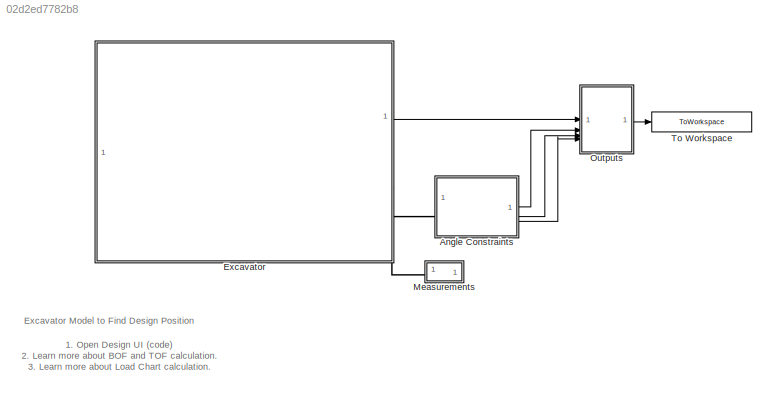
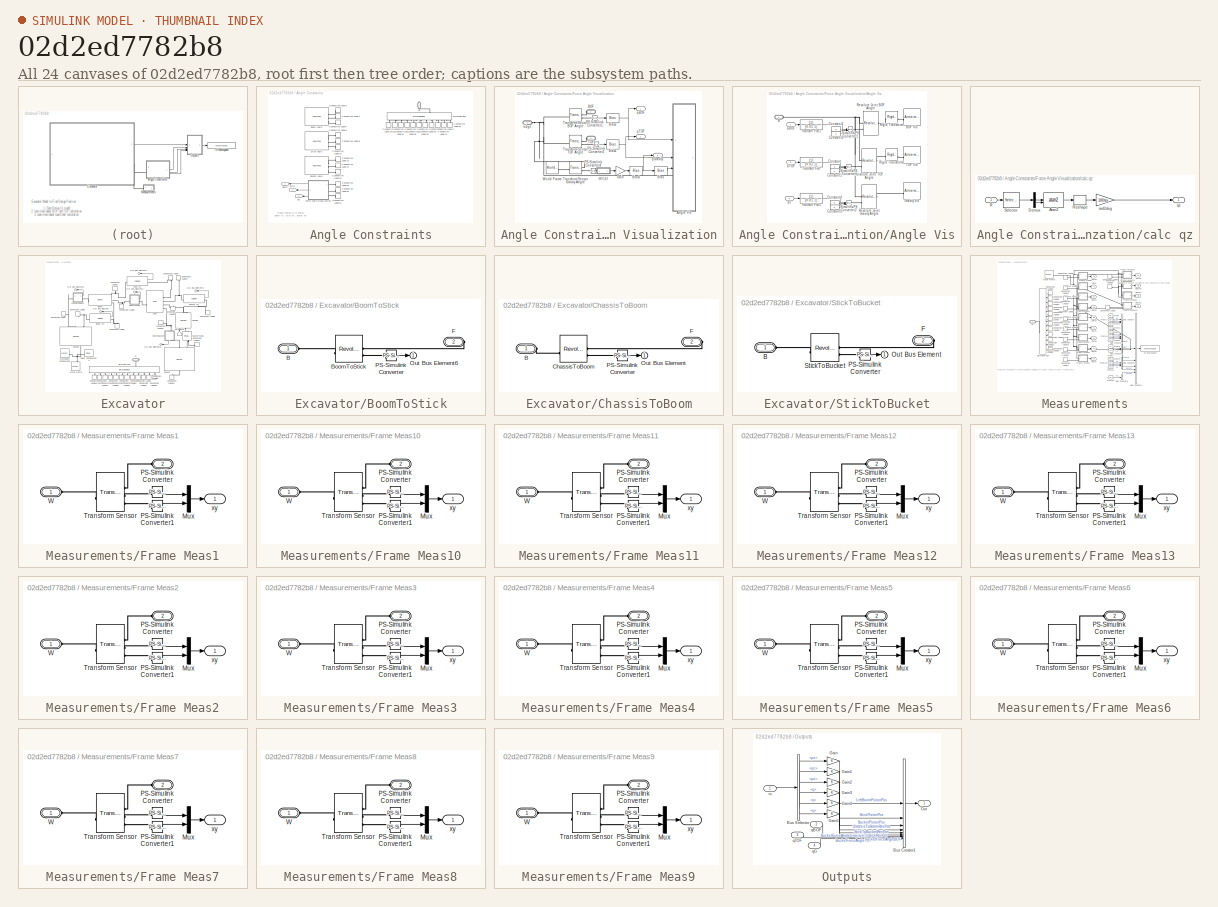
[diagram: thumbnail index - all 24 canvases of the model, root first then tree order]
MODEL slx_02d2ed7782b8
KIND model
CONFIG AbsTol = 1e-3
CONFIG EnableMultiTasking = on
CONFIG InitFcn = if(~exist('ExcvLocal'))\nExcvGlobal = Excavator_Pin_Locations_global('Design A');\nExcvLocal  = Excavator_Pin_Locations_global2local(ExcvGlobal);\ndisp('Loading default pin locations...');\nend
CONFIG SolverName = ode45
CONFIG StopTime = 0.2
BLOCK [SubSystem] Angle Constraints
BLOCK [Reference] Angle Constraints/Boom Angle  REF=Linkage_Assembly_Lib/AngleTool
  SourceBlock = Linkage_Assembly_Lib/AngleTool
  SourceType = Set Angle Between Three Frames
BLOCK [Reference] Angle Constraints/Bucket Angle  REF=Linkage_Assembly_Lib/AngleTool
  SourceBlock = Linkage_Assembly_Lib/AngleTool
  SourceType = Set Angle Between Three Frames
BLOCK [ConnectionLabel] Angle Constraints/Connection Label1
  Label = A1
BLOCK [ConnectionLabel] Angle Constraints/Connection Label10
  Label = B2
BLOCK [ConnectionLabel] Angle Constraints/Connection Label12
  Label = D1
BLOCK [ConnectionLabel] Angle Constraints/Connection Label14
  Label = C4
BLOCK [ConnectionLabel] Angle Constraints/Connection Label16
  Label = C2
BLOCK [ConnectionLabel] Angle Constraints/Connection Label18
  Label = A1
  NameLocation = right
BLOCK [ConnectionLabel] Angle Constraints/Connection Label19
  Label = A2
  NameLocation = right
BLOCK [ConnectionLabel] Angle Constraints/Connection Label2
  Label = A2
BLOCK [ConnectionLabel] Angle Constraints/Connection Label20
  Label = C4
BLOCK [ConnectionLabel] Angle Constraints/Connection Label21
  Label = B3
BLOCK [ConnectionLabel] Angle Constraints/Connection Label22
  Label = D2
BLOCK [ConnectionLabel] Angle Constraints/Connection Label24
  Label = B1
  NameLocation = right
BLOCK [ConnectionLabel] Angle Constraints/Connection Label25
  Label = B2
  NameLocation = left
BLOCK [ConnectionLabel] Angle Constraints/Connection Label26
  Label = B3
  NameLocation = left
BLOCK [ConnectionLabel] Angle Constraints/Connection Label27
  Label = C1
  NameLocation = left
BLOCK [ConnectionLabel] Angle Constraints/Connection Label28
  Label = C2
  NameLocation = left
BLOCK [ConnectionLabel] Angle Constraints/Connection Label3
  Label = C4
  NameLocation = left
BLOCK [ConnectionLabel] Angle Constraints/Connection Label30
  Label = C3
  NameLocation = left
BLOCK [ConnectionLabel] Angle Constraints/Connection Label31
  Label = D1
  NameLocation = left
BLOCK [ConnectionLabel] Angle Constraints/Connection Label32
  Label = D2
  NameLocation = left
BLOCK [ConnectionLabel] Angle Constraints/Connection Label4
  Label = B1
BLOCK [ConnectionLabel] Angle Constraints/Connection Label6
  Label = C1
BLOCK [ConnectionLabel] Angle Constraints/Connection Label8
  Label = B3
BLOCK [SubSystem] Angle Constraints/Force Angle Visualization
BLOCK [SubSystem] Angle Constraints/Force Angle Visualization/Angle Vis
BLOCK [PMIOPort] Angle Constraints/Force Angle Visualization/Angle Vis/B
  Side = Left
BLOCK [Reference] Angle Constraints/Force Angle Visualization/Angle Vis/BOF Vis  REF=Arrowhead_Lib/Arrow with
Reference Line
  SourceBlock = Arrowhead_Lib/Arrow with\nReference Line
BLOCK [Constant] Angle Constraints/Force Angle Visualization/Angle Vis/Constant
  Value = 0
BLOCK [Constant] Angle Constraints/Force Angle Visualization/Angle Vis/Constant1
  Value = 0
BLOCK [Constant] Angle Constraints/Force Angle Visualization/Angle Vis/Constant2
  Value = 0
BLOCK [Constant] Angle Constraints/Force Angle Visualization/Angle Vis/Constant3
  Value = 0
BLOCK [Constant] Angle Constraints/Force Angle Visualization/Angle Vis/Constant4
  Value = 0
BLOCK [Constant] Angle Constraints/Force Angle Visualization/Angle Vis/Constant5
  Value = 0
BLOCK [Reference] Angle Constraints/Force Angle Visualization/Angle Vis/Gravity Vis  REF=Arrowhead_Lib/Arrow with
Reference Line
  SourceBlock = Arrowhead_Lib/Arrow with\nReference Line
BLOCK [Reference] Angle Constraints/Force Angle Visualization/Angle Vis/Revolute Joint BOF Angle  REF=sm_lib/Joints/Revolute Joint
  SourceBlock = sm_lib/Joints/Revolute Joint
  SourceType = Revolute Joint
BLOCK [Reference] Angle Constraints/Force Angle Visualization/Angle Vis/Revolute Joint Gravity Angle  REF=sm_lib/Joints/Revolute Joint
  SourceBlock = sm_lib/Joints/Revolute Joint
  SourceType = Revolute Joint
BLOCK [Reference] Angle Constraints/Force Angle Visualization/Angle Vis/Revolute Joint TOF Angle  REF=sm_lib/Joints/Revolute Joint
  SourceBlock = sm_lib/Joints/Revolute Joint
  SourceType = Revolute Joint
BLOCK [Reference] Angle Constraints/Force Angle Visualization/Angle Vis/Rigid Transform  REF=sm_lib/Frames and
Transforms/Rigid
Transform
  SourceBlock = sm_lib/Frames and\nTransforms/Rigid\nTransform
  SourceType = Rigid\nTransform
BLOCK [Reference] Angle Constraints/Force Angle Visualization/Angle Vis/Rigid Transform1  REF=sm_lib/Frames and
Transforms/Rigid
Transform
  SourceBlock = sm_lib/Frames and\nTransforms/Rigid\nTransform
  SourceType = Rigid\nTransform
BLOCK [Reference] Angle Constraints/Force Angle Visualization/Angle Vis/Simulink-PS Converter  REF=nesl_utility/Simulink-PS
Converter
  SourceBlock = nesl_utility/Simulink-PS\nConverter
  SourceType = Simulink-PS\nConverter
BLOCK [Reference] Angle Constraints/Force Angle Visualization/Angle Vis/Simulink-PS Converter1  REF=nesl_utility/Simulink-PS
Converter
  SourceBlock = nesl_utility/Simulink-PS\nConverter
  SourceType = Simulink-PS\nConverter
BLOCK [Reference] Angle Constraints/Force Angle Visualization/Angle Vis/Simulink-PS Converter2  REF=nesl_utility/Simulink-PS
Converter
  SourceBlock = nesl_utility/Simulink-PS\nConverter
  SourceType = Simulink-PS\nConverter
BLOCK [Reference] Angle Constraints/Force Angle Visualization/Angle Vis/TOF Vis  REF=Arrowhead_Lib/Arrow with
Reference Line
  SourceBlock = Arrowhead_Lib/Arrow with\nReference Line
BLOCK [TransferFcn] Angle Constraints/Force Angle Visualization/Angle Vis/Transfer Fcn
  Denominator = [0.01 1]
BLOCK [TransferFcn] Angle Constraints/Force Angle Visualization/Angle Vis/Transfer Fcn1
  Denominator = [0.01 1]
BLOCK [TransferFcn] Angle Constraints/Force Angle Visualization/Angle Vis/Transfer Fcn2
  Denominator = [0.01 1]
BLOCK [Inport] Angle Constraints/Force Angle Visualization/Angle Vis/aBOF
BLOCK [Inport] Angle Constraints/Force Angle Visualization/Angle Vis/aTOF
  Port = 2
BLOCK [Inport] Angle Constraints/Force Angle Visualization/Angle Vis/qz
  Port = 3
BLOCK [PMIOPort] Angle Constraints/Force Angle Visualization/BOF
  NameLocation = top
  Port = 2
  Side = Left
BLOCK [Bias] Angle Constraints/Force Angle Visualization/Bias
  Bias = 180
  SaturateOnIntegerOverflow = off
BLOCK [Bias] Angle Constraints/Force Angle Visualization/Bias1
  Bias = -90
  SaturateOnIntegerOverflow = off
BLOCK [Bias] Angle Constraints/Force Angle Visualization/Bias2
  Bias = -90
  SaturateOnIntegerOverflow = off
BLOCK [Bias] Angle Constraints/Force Angle Visualization/Bias3
  Bias = -90
  SaturateOnIntegerOverflow = off
BLOCK [PMIOPort] Angle Constraints/Force Angle Visualization/Edge
  Side = Left
BLOCK [Gain] Angle Constraints/Force Angle Visualization/Gain
  Gain = -1
BLOCK [Reference] Angle Constraints/Force Angle Visualization/PS-Simulink Converter1  REF=nesl_utility/PS-Simulink
Converter
  SourceBlock = nesl_utility/PS-Simulink\nConverter
  SourceType = PS-Simulink\nConverter
BLOCK [Reference] Angle Constraints/Force Angle Visualization/PS-Simulink Converter2  REF=nesl_utility/PS-Simulink
Converter
  SourceBlock = nesl_utility/PS-Simulink\nConverter
  SourceType = PS-Simulink\nConverter
BLOCK [Reference] Angle Constraints/Force Angle Visualization/PS-Simulink Converter4  REF=nesl_utility/PS-Simulink
Converter
  SourceBlock = nesl_utility/PS-Simulink\nConverter
  SourceType = PS-Simulink\nConverter
BLOCK [PMIOPort] Angle Constraints/Force Angle Visualization/TOF
  NameLocation = top
  Port = 3
  Side = Left
BLOCK [Reference] Angle Constraints/Force Angle Visualization/Transform Sensor BOF Angle  REF=sm_lib/Frames and
Transforms/Transform
Sensor
  SourceBlock = sm_lib/Frames and\nTransforms/Transform\nSensor
  SourceType = Transform\nSensor
BLOCK [Reference] Angle Constraints/Force Angle Visualization/Transform Sensor Gravity Angle  REF=sm_lib/Frames and
Transforms/Transform
Sensor
  SourceBlock = sm_lib/Frames and\nTransforms/Transform\nSensor
  SourceType = Transform\nSensor
BLOCK [Reference] Angle Constraints/Force Angle Visualization/Transform Sensor TOF Angle  REF=sm_lib/Frames and
Transforms/Transform
Sensor
  SourceBlock = sm_lib/Frames and\nTransforms/Transform\nSensor
  SourceType = Transform\nSensor
BLOCK [Reference] Angle Constraints/Force Angle Visualization/World Frame  REF=sm_lib/Frames and
Transforms/World Frame
  SourceBlock = sm_lib/Frames and\nTransforms/World Frame
  SourceType = World Frame
BLOCK [SubSystem] Angle Constraints/Force Angle Visualization/calc qz
BLOCK [Trigonometry] Angle Constraints/Force Angle Visualization/calc qz/Atan2
  Operator = atan2
BLOCK [Demux] Angle Constraints/Force Angle Visualization/calc qz/Demux
  Outputs = 2
BLOCK [Inport] Angle Constraints/Force Angle Visualization/calc qz/R
BLOCK [Reshape] Angle Constraints/Force Angle Visualization/calc qz/Reshape
BLOCK [Selector] Angle Constraints/Force Angle Visualization/calc qz/Selector
  IndexOptions = Index vector (dialog),Index vector (dialog)
  Indices = [2 1],1
  InputPortWidth = 3
  NumberOfDimensions = 2
  OutputSizes = 1,1
BLOCK [Outport] Angle Constraints/Force Angle Visualization/calc qz/qz
BLOCK [Gain] Angle Constraints/Force Angle Visualization/calc qz/rad2deg
  Gain = 180/pi
BLOCK [Outport] Angle Constraints/Force Angle Visualization/qBOF
BLOCK [Outport] Angle Constraints/Force Angle Visualization/qGravity
  Port = 3
BLOCK [Outport] Angle Constraints/Force Angle Visualization/qTOF
  Port = 2
BLOCK [PMIOPort] Angle Constraints/Fr
  NameLocation = left
  Side = Left
BLOCK [SimscapeBus] Angle Constraints/Simscape Bus
  HierarchyStrings = A1;A2;B1;B2;B3;C1;C2;C3;C4;D1;D2
  NameLocation = left
BLOCK [Reference] Angle Constraints/Stick Angle  REF=Linkage_Assembly_Lib/AngleTool
  SourceBlock = Linkage_Assembly_Lib/AngleTool
  SourceType = Set Angle Between Three Frames
BLOCK [Outport] Angle Constraints/qBOF
BLOCK [Outport] Angle Constraints/qG
  Port = 3
BLOCK [Outport] Angle Constraints/qTOF
  Port = 2
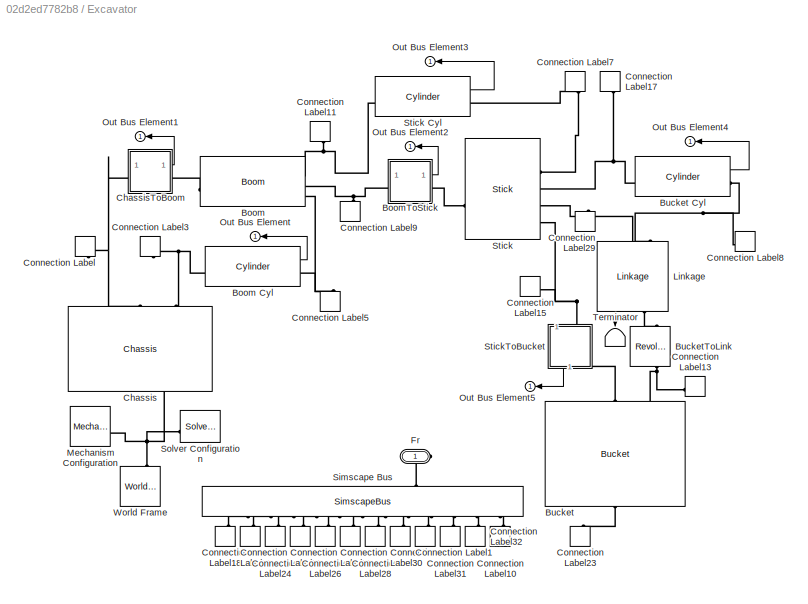
BLOCK [SubSystem] Excavator
BLOCK [Reference] Excavator/Boom  REF=Excavator_Parts_Param_Lib/Boom
  SourceBlock = Excavator_Parts_Param_Lib/Boom
BLOCK [Reference] Excavator/Boom Cyl  REF=Excavator_Parts_Param_Lib/Cylinder
  SourceBlock = Excavator_Parts_Param_Lib/Cylinder
BLOCK [SubSystem] Excavator/BoomToStick
BLOCK [PMIOPort] Excavator/BoomToStick/B
  Side = Left
BLOCK [Reference] Excavator/BoomToStick/BoomToStick  REF=sm_lib/Joints/Revolute Joint
  SourceBlock = sm_lib/Joints/Revolute Joint
  SourceType = Revolute Joint
BLOCK [PMIOPort] Excavator/BoomToStick/F
  Port = 2
  Side = Right
BLOCK [Outport] Excavator/BoomToStick/Out Bus Element6
BLOCK [Reference] Excavator/BoomToStick/PS-Simulink Converter  REF=nesl_utility/PS-Simulink
Converter
  SourceBlock = nesl_utility/PS-Simulink\nConverter
  SourceType = PS-Simulink\nConverter
BLOCK [Reference] Excavator/Bucket  REF=Excavator_Parts_Param_Lib/Bucket
  NameLocation = left
  SourceBlock = Excavator_Parts_Param_Lib/Bucket
BLOCK [Reference] Excavator/Bucket Cyl  REF=Excavator_Parts_Param_Lib/Cylinder
  SourceBlock = Excavator_Parts_Param_Lib/Cylinder
BLOCK [Reference] Excavator/BucketToLink  REF=sm_lib/Joints/Revolute Joint
  NameLocation = right
  SourceBlock = sm_lib/Joints/Revolute Joint
  SourceType = Revolute Joint
BLOCK [Reference] Excavator/Chassis  REF=Excavator_Parts_Param_Lib/Chassis
  NameLocation = right
  SourceBlock = Excavator_Parts_Param_Lib/Chassis
BLOCK [SubSystem] Excavator/ChassisToBoom
BLOCK [PMIOPort] Excavator/ChassisToBoom/B
  Side = Left
BLOCK [Reference] Excavator/ChassisToBoom/ChassisToBoom  REF=sm_lib/Joints/Revolute Joint
  SourceBlock = sm_lib/Joints/Revolute Joint
  SourceType = Revolute Joint
BLOCK [PMIOPort] Excavator/ChassisToBoom/F
  Port = 2
  Side = Right
BLOCK [Outport] Excavator/ChassisToBoom/Out Bus Element
BLOCK [Reference] Excavator/ChassisToBoom/PS-Simulink Converter  REF=nesl_utility/PS-Simulink
Converter
  SourceBlock = nesl_utility/PS-Simulink\nConverter
  SourceType = PS-Simulink\nConverter
BLOCK [ConnectionLabel] Excavator/Connection Label
  Label = A1
  NameLocation = left
BLOCK [ConnectionLabel] Excavator/Connection Label1
  Label = C4
  NameLocation = left
BLOCK [ConnectionLabel] Excavator/Connection Label10
  Label = E1
  NameLocation = right
BLOCK [ConnectionLabel] Excavator/Connection Label11
  Label = B2
  NameLocation = left
BLOCK [ConnectionLabel] Excavator/Connection Label13
  Label = D1
  NameLocation = top
BLOCK [ConnectionLabel] Excavator/Connection Label15
  Label = C4
BLOCK [ConnectionLabel] Excavator/Connection Label17
  Label = C2
  NameLocation = left
BLOCK [ConnectionLabel] Excavator/Connection Label18
  Label = A1
  NameLocation = right
BLOCK [ConnectionLabel] Excavator/Connection Label19
  Label = A2
  NameLocation = right
BLOCK [ConnectionLabel] Excavator/Connection Label23
  Label = D2
  NameLocation = right
BLOCK [ConnectionLabel] Excavator/Connection Label24
  Label = B1
  NameLocation = right
BLOCK [ConnectionLabel] Excavator/Connection Label25
  Label = B2
  NameLocation = left
BLOCK [ConnectionLabel] Excavator/Connection Label26
  Label = B3
  NameLocation = left
BLOCK [ConnectionLabel] Excavator/Connection Label27
  Label = C1
  NameLocation = left
BLOCK [ConnectionLabel] Excavator/Connection Label28
  Label = C2
  NameLocation = left
BLOCK [ConnectionLabel] Excavator/Connection Label29
  Label = C3
  NameLocation = right
BLOCK [ConnectionLabel] Excavator/Connection Label3
  Label = A2
  NameLocation = right
BLOCK [ConnectionLabel] Excavator/Connection Label30
  Label = C3
  NameLocation = left
BLOCK [ConnectionLabel] Excavator/Connection Label31
  Label = D1
  NameLocation = left
BLOCK [ConnectionLabel] Excavator/Connection Label32
  Label = D2
  NameLocation = left
BLOCK [ConnectionLabel] Excavator/Connection Label5
  Label = B1
  NameLocation = left
BLOCK [ConnectionLabel] Excavator/Connection Label7
  Label = C1
  NameLocation = left
BLOCK [ConnectionLabel] Excavator/Connection Label8
  Label = E1
  NameLocation = top
BLOCK [ConnectionLabel] Excavator/Connection Label9
  Label = B3
  NameLocation = right
BLOCK [PMIOPort] Excavator/Fr
  Side = Right
BLOCK [Reference] Excavator/Linkage  REF=Excavator_Parts_Param_Lib/Linkage
  NameLocation = right
  SourceBlock = Excavator_Parts_Param_Lib/Linkage
BLOCK [Reference] Excavator/Mechanism Configuration  REF=sm_lib/Utilities/Mechanism
Configuration
  SourceBlock = sm_lib/Utilities/Mechanism\nConfiguration
  SourceType = Mechanism\nConfiguration
BLOCK [Outport] Excavator/Out Bus Element
  NameLocation = top
BLOCK [Outport] Excavator/Out Bus Element1
  NameLocation = top
BLOCK [Outport] Excavator/Out Bus Element2
  NameLocation = top
BLOCK [Outport] Excavator/Out Bus Element3
  NameLocation = top
BLOCK [Outport] Excavator/Out Bus Element4
  NameLocation = top
BLOCK [Outport] Excavator/Out Bus Element5
  NameLocation = top
BLOCK [SimscapeBus] Excavator/Simscape Bus
  HierarchyStrings = A1;A2;B1;B2;B3;C1;C2;C3;C4;D1;D2;E1
  NameLocation = left
BLOCK [Reference] Excavator/Solver Configuration  REF=nesl_utility/Solver
Configuration
  SourceBlock = nesl_utility/Solver\nConfiguration
  SourceType = Solver\nConfiguration
BLOCK [Reference] Excavator/Stick  REF=Excavator_Parts_Param_Lib/Stick
  SourceBlock = Excavator_Parts_Param_Lib/Stick
BLOCK [Reference] Excavator/Stick Cyl  REF=Excavator_Parts_Param_Lib/Cylinder
  SourceBlock = Excavator_Parts_Param_Lib/Cylinder
BLOCK [SubSystem] Excavator/StickToBucket
  NameLocation = left
BLOCK [PMIOPort] Excavator/StickToBucket/B
  Side = Left
BLOCK [PMIOPort] Excavator/StickToBucket/F
  Port = 2
  Side = Right
BLOCK [Outport] Excavator/StickToBucket/Out Bus Element
BLOCK [Reference] Excavator/StickToBucket/PS-Simulink Converter  REF=nesl_utility/PS-Simulink
Converter
  SourceBlock = nesl_utility/PS-Simulink\nConverter
  SourceType = PS-Simulink\nConverter
BLOCK [Reference] Excavator/StickToBucket/StickToBucket  REF=sm_lib/Joints/Revolute Joint
  SourceBlock = sm_lib/Joints/Revolute Joint
  SourceType = Revolute Joint
BLOCK [Terminator] Excavator/Terminator
  NameLocation = left
BLOCK [Reference] Excavator/World Frame  REF=sm_lib/Frames and
Transforms/World Frame
  NameLocation = right
  SourceBlock = sm_lib/Frames and\nTransforms/World Frame
  SourceType = World Frame
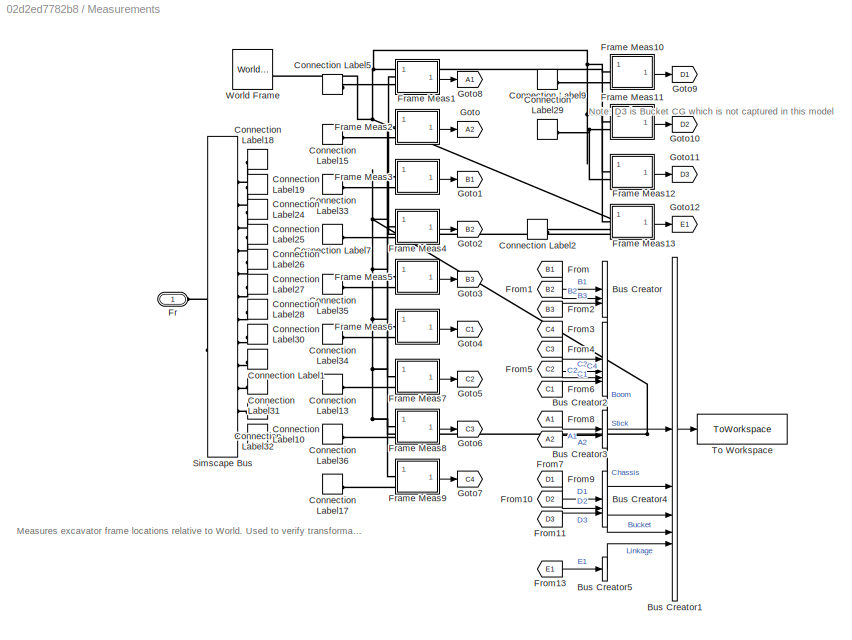
BLOCK [SubSystem] Measurements
BLOCK [BusCreator] Measurements/Bus Creator
  DisplayOption = bar
  InheritFromInputs = on
  Inputs = 3
BLOCK [BusCreator] Measurements/Bus Creator1
  DisplayOption = bar
  InheritFromInputs = on
  Inputs = 5
BLOCK [BusCreator] Measurements/Bus Creator2
  DisplayOption = bar
  InheritFromInputs = on
  Inputs = 4
BLOCK [BusCreator] Measurements/Bus Creator3
  DisplayOption = bar
  InheritFromInputs = on
  Inputs = 2
BLOCK [BusCreator] Measurements/Bus Creator4
  DisplayOption = bar
  InheritFromInputs = on
  Inputs = 3
BLOCK [BusCreator] Measurements/Bus Creator5
  DisplayOption = bar
  InheritFromInputs = on
  Inputs = 1
BLOCK [ConnectionLabel] Measurements/Connection Label1
  Label = C4
  NameLocation = top
BLOCK [ConnectionLabel] Measurements/Connection Label10
  Label = E1
BLOCK [ConnectionLabel] Measurements/Connection Label13
  Label = C2
BLOCK [ConnectionLabel] Measurements/Connection Label15
  Label = A2
BLOCK [ConnectionLabel] Measurements/Connection Label17
  Label = C4
BLOCK [ConnectionLabel] Measurements/Connection Label18
  Label = A1
BLOCK [ConnectionLabel] Measurements/Connection Label19
  Label = A2
BLOCK [ConnectionLabel] Measurements/Connection Label2
  Label = E1
BLOCK [ConnectionLabel] Measurements/Connection Label24
  Label = B1
BLOCK [ConnectionLabel] Measurements/Connection Label25
  Label = B2
  NameLocation = top
BLOCK [ConnectionLabel] Measurements/Connection Label26
  Label = B3
  NameLocation = top
BLOCK [ConnectionLabel] Measurements/Connection Label27
  Label = C1
  NameLocation = top
BLOCK [ConnectionLabel] Measurements/Connection Label28
  Label = C2
  NameLocation = top
BLOCK [ConnectionLabel] Measurements/Connection Label29
  Label = D2
BLOCK [ConnectionLabel] Measurements/Connection Label30
  Label = C3
  NameLocation = top
BLOCK [ConnectionLabel] Measurements/Connection Label31
  Label = D1
  NameLocation = top
BLOCK [ConnectionLabel] Measurements/Connection Label32
  Label = D2
  NameLocation = top
BLOCK [ConnectionLabel] Measurements/Connection Label33
  Label = B1
BLOCK [ConnectionLabel] Measurements/Connection Label34
  Label = C1
BLOCK [ConnectionLabel] Measurements/Connection Label35
  Label = B3
BLOCK [ConnectionLabel] Measurements/Connection Label36
  Label = C3
  NameLocation = top
BLOCK [ConnectionLabel] Measurements/Connection Label5
  Label = A1
BLOCK [ConnectionLabel] Measurements/Connection Label7
  Label = B2
BLOCK [ConnectionLabel] Measurements/Connection Label9
  Label = D1
BLOCK [PMIOPort] Measurements/Fr
  NameLocation = top
  Side = Left
BLOCK [SubSystem] Measurements/Frame Meas1
BLOCK [PMIOPort] Measurements/Frame Meas1/F
  Port = 2
  Side = Left
BLOCK [Mux] Measurements/Frame Meas1/Mux
  DisplayOption = bar
  Inputs = 2
BLOCK [Reference] Measurements/Frame Meas1/PS-Simulink Converter  REF=nesl_utility/PS-Simulink
Converter
  SourceBlock = nesl_utility/PS-Simulink\nConverter
  SourceType = PS-Simulink\nConverter
BLOCK [Reference] Measurements/Frame Meas1/PS-Simulink Converter1  REF=nesl_utility/PS-Simulink
Converter
  SourceBlock = nesl_utility/PS-Simulink\nConverter
  SourceType = PS-Simulink\nConverter
BLOCK [Reference] Measurements/Frame Meas1/Transform Sensor  REF=sm_lib/Frames and
Transforms/Transform
Sensor
  SourceBlock = sm_lib/Frames and\nTransforms/Transform\nSensor
  SourceType = Transform\nSensor
BLOCK [PMIOPort] Measurements/Frame Meas1/W
  Side = Left
BLOCK [Outport] Measurements/Frame Meas1/xy
BLOCK [SubSystem] Measurements/Frame Meas10
BLOCK [PMIOPort] Measurements/Frame Meas10/F
  Port = 2
  Side = Left
BLOCK [Mux] Measurements/Frame Meas10/Mux
  DisplayOption = bar
  Inputs = 2
BLOCK [Reference] Measurements/Frame Meas10/PS-Simulink Converter  REF=nesl_utility/PS-Simulink
Converter
  SourceBlock = nesl_utility/PS-Simulink\nConverter
  SourceType = PS-Simulink\nConverter
BLOCK [Reference] Measurements/Frame Meas10/PS-Simulink Converter1  REF=nesl_utility/PS-Simulink
Converter
  SourceBlock = nesl_utility/PS-Simulink\nConverter
  SourceType = PS-Simulink\nConverter
BLOCK [Reference] Measurements/Frame Meas10/Transform Sensor  REF=sm_lib/Frames and
Transforms/Transform
Sensor
  SourceBlock = sm_lib/Frames and\nTransforms/Transform\nSensor
  SourceType = Transform\nSensor
BLOCK [PMIOPort] Measurements/Frame Meas10/W
  Side = Left
BLOCK [Outport] Measurements/Frame Meas10/xy
BLOCK [SubSystem] Measurements/Frame Meas11
BLOCK [PMIOPort] Measurements/Frame Meas11/F
  Port = 2
  Side = Left
BLOCK [Mux] Measurements/Frame Meas11/Mux
  DisplayOption = bar
  Inputs = 2
BLOCK [Reference] Measurements/Frame Meas11/PS-Simulink Converter  REF=nesl_utility/PS-Simulink
Converter
  SourceBlock = nesl_utility/PS-Simulink\nConverter
  SourceType = PS-Simulink\nConverter
BLOCK [Reference] Measurements/Frame Meas11/PS-Simulink Converter1  REF=nesl_utility/PS-Simulink
Converter
  SourceBlock = nesl_utility/PS-Simulink\nConverter
  SourceType = PS-Simulink\nConverter
BLOCK [Reference] Measurements/Frame Meas11/Transform Sensor  REF=sm_lib/Frames and
Transforms/Transform
Sensor
  SourceBlock = sm_lib/Frames and\nTransforms/Transform\nSensor
  SourceType = Transform\nSensor
BLOCK [PMIOPort] Measurements/Frame Meas11/W
  Side = Left
BLOCK [Outport] Measurements/Frame Meas11/xy
BLOCK [SubSystem] Measurements/Frame Meas12
BLOCK [PMIOPort] Measurements/Frame Meas12/F
  Port = 2
  Side = Left
BLOCK [Mux] Measurements/Frame Meas12/Mux
  DisplayOption = bar
  Inputs = 2
BLOCK [Reference] Measurements/Frame Meas12/PS-Simulink Converter  REF=nesl_utility/PS-Simulink
Converter
  SourceBlock = nesl_utility/PS-Simulink\nConverter
  SourceType = PS-Simulink\nConverter
BLOCK [Reference] Measurements/Frame Meas12/PS-Simulink Converter1  REF=nesl_utility/PS-Simulink
Converter
  SourceBlock = nesl_utility/PS-Simulink\nConverter
  SourceType = PS-Simulink\nConverter
BLOCK [Reference] Measurements/Frame Meas12/Transform Sensor  REF=sm_lib/Frames and
Transforms/Transform
Sensor
  SourceBlock = sm_lib/Frames and\nTransforms/Transform\nSensor
  SourceType = Transform\nSensor
BLOCK [PMIOPort] Measurements/Frame Meas12/W
  Side = Left
BLOCK [Outport] Measurements/Frame Meas12/xy
BLOCK [SubSystem] Measurements/Frame Meas13
BLOCK [PMIOPort] Measurements/Frame Meas13/F
  Port = 2
  Side = Left
BLOCK [Mux] Measurements/Frame Meas13/Mux
  DisplayOption = bar
  Inputs = 2
BLOCK [Reference] Measurements/Frame Meas13/PS-Simulink Converter  REF=nesl_utility/PS-Simulink
Converter
  SourceBlock = nesl_utility/PS-Simulink\nConverter
  SourceType = PS-Simulink\nConverter
BLOCK [Reference] Measurements/Frame Meas13/PS-Simulink Converter1  REF=nesl_utility/PS-Simulink
Converter
  SourceBlock = nesl_utility/PS-Simulink\nConverter
  SourceType = PS-Simulink\nConverter
BLOCK [Reference] Measurements/Frame Meas13/Transform Sensor  REF=sm_lib/Frames and
Transforms/Transform
Sensor
  SourceBlock = sm_lib/Frames and\nTransforms/Transform\nSensor
  SourceType = Transform\nSensor
BLOCK [PMIOPort] Measurements/Frame Meas13/W
  Side = Left
BLOCK [Outport] Measurements/Frame Meas13/xy
BLOCK [SubSystem] Measurements/Frame Meas2
BLOCK [PMIOPort] Measurements/Frame Meas2/F
  Port = 2
  Side = Left
BLOCK [Mux] Measurements/Frame Meas2/Mux
  DisplayOption = bar
  Inputs = 2
BLOCK [Reference] Measurements/Frame Meas2/PS-Simulink Converter  REF=nesl_utility/PS-Simulink
Converter
  SourceBlock = nesl_utility/PS-Simulink\nConverter
  SourceType = PS-Simulink\nConverter
BLOCK [Reference] Measurements/Frame Meas2/PS-Simulink Converter1  REF=nesl_utility/PS-Simulink
Converter
  SourceBlock = nesl_utility/PS-Simulink\nConverter
  SourceType = PS-Simulink\nConverter
BLOCK [Reference] Measurements/Frame Meas2/Transform Sensor  REF=sm_lib/Frames and
Transforms/Transform
Sensor
  SourceBlock = sm_lib/Frames and\nTransforms/Transform\nSensor
  SourceType = Transform\nSensor
BLOCK [PMIOPort] Measurements/Frame Meas2/W
  Side = Left
BLOCK [Outport] Measurements/Frame Meas2/xy
BLOCK [SubSystem] Measurements/Frame Meas3
BLOCK [PMIOPort] Measurements/Frame Meas3/F
  Port = 2
  Side = Left
BLOCK [Mux] Measurements/Frame Meas3/Mux
  DisplayOption = bar
  Inputs = 2
BLOCK [Reference] Measurements/Frame Meas3/PS-Simulink Converter  REF=nesl_utility/PS-Simulink
Converter
  SourceBlock = nesl_utility/PS-Simulink\nConverter
  SourceType = PS-Simulink\nConverter
BLOCK [Reference] Measurements/Frame Meas3/PS-Simulink Converter1  REF=nesl_utility/PS-Simulink
Converter
  SourceBlock = nesl_utility/PS-Simulink\nConverter
  SourceType = PS-Simulink\nConverter
BLOCK [Reference] Measurements/Frame Meas3/Transform Sensor  REF=sm_lib/Frames and
Transforms/Transform
Sensor
  SourceBlock = sm_lib/Frames and\nTransforms/Transform\nSensor
  SourceType = Transform\nSensor
BLOCK [PMIOPort] Measurements/Frame Meas3/W
  Side = Left
BLOCK [Outport] Measurements/Frame Meas3/xy
BLOCK [SubSystem] Measurements/Frame Meas4
BLOCK [PMIOPort] Measurements/Frame Meas4/F
  Port = 2
  Side = Left
BLOCK [Mux] Measurements/Frame Meas4/Mux
  DisplayOption = bar
  Inputs = 2
BLOCK [Reference] Measurements/Frame Meas4/PS-Simulink Converter  REF=nesl_utility/PS-Simulink
Converter
  SourceBlock = nesl_utility/PS-Simulink\nConverter
  SourceType = PS-Simulink\nConverter
BLOCK [Reference] Measurements/Frame Meas4/PS-Simulink Converter1  REF=nesl_utility/PS-Simulink
Converter
  SourceBlock = nesl_utility/PS-Simulink\nConverter
  SourceType = PS-Simulink\nConverter
BLOCK [Reference] Measurements/Frame Meas4/Transform Sensor  REF=sm_lib/Frames and
Transforms/Transform
Sensor
  SourceBlock = sm_lib/Frames and\nTransforms/Transform\nSensor
  SourceType = Transform\nSensor
BLOCK [PMIOPort] Measurements/Frame Meas4/W
  Side = Left
BLOCK [Outport] Measurements/Frame Meas4/xy
BLOCK [SubSystem] Measurements/Frame Meas5
BLOCK [PMIOPort] Measurements/Frame Meas5/F
  Port = 2
  Side = Left
BLOCK [Mux] Measurements/Frame Meas5/Mux
  DisplayOption = bar
  Inputs = 2
BLOCK [Reference] Measurements/Frame Meas5/PS-Simulink Converter  REF=nesl_utility/PS-Simulink
Converter
  SourceBlock = nesl_utility/PS-Simulink\nConverter
  SourceType = PS-Simulink\nConverter
BLOCK [Reference] Measurements/Frame Meas5/PS-Simulink Converter1  REF=nesl_utility/PS-Simulink
Converter
  SourceBlock = nesl_utility/PS-Simulink\nConverter
  SourceType = PS-Simulink\nConverter
BLOCK [Reference] Measurements/Frame Meas5/Transform Sensor  REF=sm_lib/Frames and
Transforms/Transform
Sensor
  SourceBlock = sm_lib/Frames and\nTransforms/Transform\nSensor
  SourceType = Transform\nSensor
BLOCK [PMIOPort] Measurements/Frame Meas5/W
  Side = Left
BLOCK [Outport] Measurements/Frame Meas5/xy
BLOCK [SubSystem] Measurements/Frame Meas6
BLOCK [PMIOPort] Measurements/Frame Meas6/F
  Port = 2
  Side = Left
BLOCK [Mux] Measurements/Frame Meas6/Mux
  DisplayOption = bar
  Inputs = 2
BLOCK [Reference] Measurements/Frame Meas6/PS-Simulink Converter  REF=nesl_utility/PS-Simulink
Converter
  SourceBlock = nesl_utility/PS-Simulink\nConverter
  SourceType = PS-Simulink\nConverter
BLOCK [Reference] Measurements/Frame Meas6/PS-Simulink Converter1  REF=nesl_utility/PS-Simulink
Converter
  SourceBlock = nesl_utility/PS-Simulink\nConverter
  SourceType = PS-Simulink\nConverter
BLOCK [Reference] Measurements/Frame Meas6/Transform Sensor  REF=sm_lib/Frames and
Transforms/Transform
Sensor
  SourceBlock = sm_lib/Frames and\nTransforms/Transform\nSensor
  SourceType = Transform\nSensor
BLOCK [PMIOPort] Measurements/Frame Meas6/W
  Side = Left
BLOCK [Outport] Measurements/Frame Meas6/xy
BLOCK [SubSystem] Measurements/Frame Meas7
BLOCK [PMIOPort] Measurements/Frame Meas7/F
  Port = 2
  Side = Left
BLOCK [Mux] Measurements/Frame Meas7/Mux
  DisplayOption = bar
  Inputs = 2
BLOCK [Reference] Measurements/Frame Meas7/PS-Simulink Converter  REF=nesl_utility/PS-Simulink
Converter
  SourceBlock = nesl_utility/PS-Simulink\nConverter
  SourceType = PS-Simulink\nConverter
BLOCK [Reference] Measurements/Frame Meas7/PS-Simulink Converter1  REF=nesl_utility/PS-Simulink
Converter
  SourceBlock = nesl_utility/PS-Simulink\nConverter
  SourceType = PS-Simulink\nConverter
BLOCK [Reference] Measurements/Frame Meas7/Transform Sensor  REF=sm_lib/Frames and
Transforms/Transform
Sensor
  SourceBlock = sm_lib/Frames and\nTransforms/Transform\nSensor
  SourceType = Transform\nSensor
BLOCK [PMIOPort] Measurements/Frame Meas7/W
  Side = Left
BLOCK [Outport] Measurements/Frame Meas7/xy
BLOCK [SubSystem] Measurements/Frame Meas8
BLOCK [PMIOPort] Measurements/Frame Meas8/F
  Port = 2
  Side = Left
BLOCK [Mux] Measurements/Frame Meas8/Mux
  DisplayOption = bar
  Inputs = 2
BLOCK [Reference] Measurements/Frame Meas8/PS-Simulink Converter  REF=nesl_utility/PS-Simulink
Converter
  SourceBlock = nesl_utility/PS-Simulink\nConverter
  SourceType = PS-Simulink\nConverter
BLOCK [Reference] Measurements/Frame Meas8/PS-Simulink Converter1  REF=nesl_utility/PS-Simulink
Converter
  SourceBlock = nesl_utility/PS-Simulink\nConverter
  SourceType = PS-Simulink\nConverter
BLOCK [Reference] Measurements/Frame Meas8/Transform Sensor  REF=sm_lib/Frames and
Transforms/Transform
Sensor
  SourceBlock = sm_lib/Frames and\nTransforms/Transform\nSensor
  SourceType = Transform\nSensor
BLOCK [PMIOPort] Measurements/Frame Meas8/W
  Side = Left
BLOCK [Outport] Measurements/Frame Meas8/xy
BLOCK [SubSystem] Measurements/Frame Meas9
BLOCK [PMIOPort] Measurements/Frame Meas9/F
  Port = 2
  Side = Left
BLOCK [Mux] Measurements/Frame Meas9/Mux
  DisplayOption = bar
  Inputs = 2
BLOCK [Reference] Measurements/Frame Meas9/PS-Simulink Converter  REF=nesl_utility/PS-Simulink
Converter
  SourceBlock = nesl_utility/PS-Simulink\nConverter
  SourceType = PS-Simulink\nConverter
BLOCK [Reference] Measurements/Frame Meas9/PS-Simulink Converter1  REF=nesl_utility/PS-Simulink
Converter
  SourceBlock = nesl_utility/PS-Simulink\nConverter
  SourceType = PS-Simulink\nConverter
BLOCK [Reference] Measurements/Frame Meas9/Transform Sensor  REF=sm_lib/Frames and
Transforms/Transform
Sensor
  SourceBlock = sm_lib/Frames and\nTransforms/Transform\nSensor
  SourceType = Transform\nSensor
BLOCK [PMIOPort] Measurements/Frame Meas9/W
  Side = Left
BLOCK [Outport] Measurements/Frame Meas9/xy
BLOCK [From] Measurements/From
  GotoTag = B1
BLOCK [From] Measurements/From1
  GotoTag = B2
BLOCK [From] Measurements/From10
  GotoTag = D2
BLOCK [From] Measurements/From11
  GotoTag = D3
BLOCK [From] Measurements/From13
  GotoTag = E1
BLOCK [From] Measurements/From2
  GotoTag = B3
BLOCK [From] Measurements/From3
  GotoTag = C4
BLOCK [From] Measurements/From4
  GotoTag = C3
BLOCK [From] Measurements/From5
  GotoTag = C2
BLOCK [From] Measurements/From6
  GotoTag = C1
BLOCK [From] Measurements/From7
  GotoTag = A2
BLOCK [From] Measurements/From8
  GotoTag = A1
BLOCK [From] Measurements/From9
  GotoTag = D1
BLOCK [Goto] Measurements/Goto
  GotoTag = A2
BLOCK [Goto] Measurements/Goto1
  GotoTag = B1
BLOCK [Goto] Measurements/Goto10
  GotoTag = D2
BLOCK [Goto] Measurements/Goto11
  GotoTag = D3
BLOCK [Goto] Measurements/Goto12
  GotoTag = E1
BLOCK [Goto] Measurements/Goto2
  GotoTag = B2
BLOCK [Goto] Measurements/Goto3
  GotoTag = B3
BLOCK [Goto] Measurements/Goto4
  GotoTag = C1
BLOCK [Goto] Measurements/Goto5
  GotoTag = C2
BLOCK [Goto] Measurements/Goto6
  GotoTag = C3
BLOCK [Goto] Measurements/Goto7
  GotoTag = C4
BLOCK [Goto] Measurements/Goto8
  GotoTag = A1
BLOCK [Goto] Measurements/Goto9
  GotoTag = D1
BLOCK [SimscapeBus] Measurements/Simscape Bus
  HierarchyStrings = A1;A2;B1;B2;B3;C1;C2;C3;C4;D1;D2;E1
  NameLocation = top
BLOCK [ToWorkspace] Measurements/To Workspace
  FixptAsFi = on
  MaxDataPoints = 1
  SampleTime = -1
  SaveFormat = Timeseries
  VariableName = excavator_frames
BLOCK [Reference] Measurements/World Frame  REF=sm_lib/Frames and
Transforms/World Frame
  SourceBlock = sm_lib/Frames and\nTransforms/World Frame
  SourceType = World Frame
BLOCK [SubSystem] Outputs
BLOCK [BusCreator] Outputs/Bus Creator1
  DisplayOption = bar
  InheritFromInputs = on
  Inputs = 9
BLOCK [BusSelector] Outputs/Bus Selector
  OutputSignals = cBoomL.pz,cStick.pz,cBucket.pz,jC2B.q,jB2S.q,jS2B.q
BLOCK [Gain] Outputs/Gain
BLOCK [Gain] Outputs/Gain1
BLOCK [Gain] Outputs/Gain2
BLOCK [Gain] Outputs/Gain3
BLOCK [Gain] Outputs/Gain4
BLOCK [Gain] Outputs/Gain5
BLOCK [Outport] Outputs/Out
BLOCK [Inport] Outputs/m
BLOCK [Inport] Outputs/qBOF
  Port = 2
BLOCK [Inport] Outputs/qG
  Port = 4
BLOCK [Inport] Outputs/qTOF
  Port = 3
BLOCK [ToWorkspace] To Workspace
  FixptAsFi = on
  MaxDataPoints = inf
  SampleTime = -1
  SaveFormat = Timeseries
  VariableName = BOFTOFSetupOut
ANNOTATION (root): 1. Open Design UI ( code ) 2. Learn more about BOF and TOF calculation. 3. Learn more about Load Chart calculation.
ANNOTATION (root): Excavator Model to Find Design Position
ANNOTATION Angle Constraints: Image created with angles Boom 70 ° , Stick 40 ° , Bucket 90 °
ANNOTATION Measurements: Note: D3 is Bucket CG which is not captured in this model
ANNOTATION Measurements: Measures excavator frame locations relative to World. Used to verify transformations from global to local coordinates for parts.
LINE Angle Constraints/Force Angle Visualization/Angle Vis/Constant1:1 -> Angle Constraints/Force Angle Visualization/Angle Vis/Simulink-PS Converter:3
LINE Angle Constraints/Force Angle Visualization/Angle Vis/Constant2:1 -> Angle Constraints/Force Angle Visualization/Angle Vis/Simulink-PS Converter1:2
LINE Angle Constraints/Force Angle Visualization/Angle Vis/Constant3:1 -> Angle Constraints/Force Angle Visualization/Angle Vis/Simulink-PS Converter1:3
LINE Angle Constraints/Force Angle Visualization/Angle Vis/Constant4:1 -> Angle Constraints/Force Angle Visualization/Angle Vis/Simulink-PS Converter2:2
LINE Angle Constraints/Force Angle Visualization/Angle Vis/Constant5:1 -> Angle Constraints/Force Angle Visualization/Angle Vis/Simulink-PS Converter2:3
LINE Angle Constraints/Force Angle Visualization/Angle Vis/Constant:1 -> Angle Constraints/Force Angle Visualization/Angle Vis/Simulink-PS Converter:2
LINE Angle Constraints/Force Angle Visualization/Angle Vis/Transfer Fcn1:1 -> Angle Constraints/Force Angle Visualization/Angle Vis/Simulink-PS Converter1:1
LINE Angle Constraints/Force Angle Visualization/Angle Vis/Transfer Fcn2:1 -> Angle Constraints/Force Angle Visualization/Angle Vis/Simulink-PS Converter2:1
LINE Angle Constraints/Force Angle Visualization/Angle Vis/Transfer Fcn:1 -> Angle Constraints/Force Angle Visualization/Angle Vis/Simulink-PS Converter:1
LINE Angle Constraints/Force Angle Visualization/Angle Vis/aBOF:1 -> Angle Constraints/Force Angle Visualization/Angle Vis/Transfer Fcn1:1
LINE Angle Constraints/Force Angle Visualization/Angle Vis/aTOF:1 -> Angle Constraints/Force Angle Visualization/Angle Vis/Transfer Fcn:1
LINE Angle Constraints/Force Angle Visualization/Angle Vis/qz:1 -> Angle Constraints/Force Angle Visualization/Angle Vis/Transfer Fcn2:1
NET Angle Constraints/Force Angle Visualization/Bias1:1 -> Angle Constraints/Force Angle Visualization/Angle Vis:2, Angle Constraints/Force Angle Visualization/qTOF:1
NET Angle Constraints/Force Angle Visualization/Bias2:1 -> Angle Constraints/Force Angle Visualization/Angle Vis:1, Angle Constraints/Force Angle Visualization/qBOF:1
NET Angle Constraints/Force Angle Visualization/Bias3:1 -> Angle Constraints/Force Angle Visualization/Bias:1, Angle Constraints/Force Angle Visualization/qGravity:1
LINE Angle Constraints/Force Angle Visualization/Bias:1 -> Angle Constraints/Force Angle Visualization/Angle Vis:3
LINE Angle Constraints/Force Angle Visualization/Gain:1 -> Angle Constraints/Force Angle Visualization/Bias3:1
LINE Angle Constraints/Force Angle Visualization/PS-Simulink Converter1:1 -> Angle Constraints/Force Angle Visualization/Bias2:1
LINE Angle Constraints/Force Angle Visualization/PS-Simulink Converter2:1 -> Angle Constraints/Force Angle Visualization/Bias1:1
LINE Angle Constraints/Force Angle Visualization/PS-Simulink Converter4:1 -> Angle Constraints/Force Angle Visualization/calc qz:1
LINE Angle Constraints/Force Angle Visualization/calc qz/Atan2:1 -> Angle Constraints/Force Angle Visualization/calc qz/Reshape:1
LINE Angle Constraints/Force Angle Visualization/calc qz/Demux:1 -> Angle Constraints/Force Angle Visualization/calc qz/Atan2:1
LINE Angle Constraints/Force Angle Visualization/calc qz/Demux:2 -> Angle Constraints/Force Angle Visualization/calc qz/Atan2:2
LINE Angle Constraints/Force Angle Visualization/calc qz/R:1 -> Angle Constraints/Force Angle Visualization/calc qz/Selector:1
LINE Angle Constraints/Force Angle Visualization/calc qz/Reshape:1 -> Angle Constraints/Force Angle Visualization/calc qz/rad2deg:1
LINE Angle Constraints/Force Angle Visualization/calc qz/Selector:1 -> Angle Constraints/Force Angle Visualization/calc qz/Demux:1
LINE Angle Constraints/Force Angle Visualization/calc qz/rad2deg:1 -> Angle Constraints/Force Angle Visualization/calc qz/qz:1
LINE Angle Constraints/Force Angle Visualization/calc qz:1 -> Angle Constraints/Force Angle Visualization/Gain:1
LINE Angle Constraints/Force Angle Visualization:1 -> Angle Constraints/qBOF:1
LINE Angle Constraints/Force Angle Visualization:2 -> Angle Constraints/qTOF:1
LINE Angle Constraints/Force Angle Visualization:3 -> Angle Constraints/qG:1
LINE Angle Constraints:1 -> Outputs:2
LINE Angle Constraints:2 -> Outputs:3
LINE Angle Constraints:3 -> Outputs:4
LINE Excavator/Boom Cyl:1 -> Excavator/Out Bus Element:1
LINE Excavator/BoomToStick/PS-Simulink Converter:1 -> Excavator/BoomToStick/Out Bus Element6:1
LINE Excavator/BoomToStick:1 -> Excavator/Out Bus Element2:1
LINE Excavator/Bucket Cyl:1 -> Excavator/Out Bus Element4:1
LINE Excavator/ChassisToBoom/PS-Simulink Converter:1 -> Excavator/ChassisToBoom/Out Bus Element:1
LINE Excavator/ChassisToBoom:1 -> Excavator/Out Bus Element1:1
LINE Excavator/Linkage:1 -> Excavator/Terminator:1
LINE Excavator/Stick Cyl:1 -> Excavator/Out Bus Element3:1
LINE Excavator/StickToBucket/PS-Simulink Converter:1 -> Excavator/StickToBucket/Out Bus Element:1
LINE Excavator/StickToBucket:1 -> Excavator/Out Bus Element5:1
LINE Excavator:1 -> Outputs:1
LINE Measurements/Bus Creator1:1 -> Measurements/To Workspace:1
LINE Measurements/Bus Creator2:1 -> Measurements/Bus Creator1:2
LINE Measurements/Bus Creator3:1 -> Measurements/Bus Creator1:3
LINE Measurements/Bus Creator4:1 -> Measurements/Bus Creator1:4
LINE Measurements/Bus Creator5:1 -> Measurements/Bus Creator1:5
LINE Measurements/Bus Creator:1 -> Measurements/Bus Creator1:1
LINE Measurements/Frame Meas1/Mux:1 -> Measurements/Frame Meas1/xy:1
LINE Measurements/Frame Meas1/PS-Simulink Converter1:1 -> Measurements/Frame Meas1/Mux:2
LINE Measurements/Frame Meas1/PS-Simulink Converter:1 -> Measurements/Frame Meas1/Mux:1
LINE Measurements/Frame Meas10/Mux:1 -> Measurements/Frame Meas10/xy:1
LINE Measurements/Frame Meas10/PS-Simulink Converter1:1 -> Measurements/Frame Meas10/Mux:2
LINE Measurements/Frame Meas10/PS-Simulink Converter:1 -> Measurements/Frame Meas10/Mux:1
LINE Measurements/Frame Meas10:1 -> Measurements/Goto9:1
LINE Measurements/Frame Meas11/Mux:1 -> Measurements/Frame Meas11/xy:1
LINE Measurements/Frame Meas11/PS-Simulink Converter1:1 -> Measurements/Frame Meas11/Mux:2
LINE Measurements/Frame Meas11/PS-Simulink Converter:1 -> Measurements/Frame Meas11/Mux:1
LINE Measurements/Frame Meas11:1 -> Measurements/Goto10:1
LINE Measurements/Frame Meas12/Mux:1 -> Measurements/Frame Meas12/xy:1
LINE Measurements/Frame Meas12/PS-Simulink Converter1:1 -> Measurements/Frame Meas12/Mux:2
LINE Measurements/Frame Meas12/PS-Simulink Converter:1 -> Measurements/Frame Meas12/Mux:1
LINE Measurements/Frame Meas12:1 -> Measurements/Goto11:1
LINE Measurements/Frame Meas13/Mux:1 -> Measurements/Frame Meas13/xy:1
LINE Measurements/Frame Meas13/PS-Simulink Converter1:1 -> Measurements/Frame Meas13/Mux:2
LINE Measurements/Frame Meas13/PS-Simulink Converter:1 -> Measurements/Frame Meas13/Mux:1
LINE Measurements/Frame Meas13:1 -> Measurements/Goto12:1
LINE Measurements/Frame Meas1:1 -> Measurements/Goto8:1
LINE Measurements/Frame Meas2/Mux:1 -> Measurements/Frame Meas2/xy:1
LINE Measurements/Frame Meas2/PS-Simulink Converter1:1 -> Measurements/Frame Meas2/Mux:2
LINE Measurements/Frame Meas2/PS-Simulink Converter:1 -> Measurements/Frame Meas2/Mux:1
LINE Measurements/Frame Meas2:1 -> Measurements/Goto:1
LINE Measurements/Frame Meas3/Mux:1 -> Measurements/Frame Meas3/xy:1
LINE Measurements/Frame Meas3/PS-Simulink Converter1:1 -> Measurements/Frame Meas3/Mux:2
LINE Measurements/Frame Meas3/PS-Simulink Converter:1 -> Measurements/Frame Meas3/Mux:1
LINE Measurements/Frame Meas3:1 -> Measurements/Goto1:1
LINE Measurements/Frame Meas4/Mux:1 -> Measurements/Frame Meas4/xy:1
LINE Measurements/Frame Meas4/PS-Simulink Converter1:1 -> Measurements/Frame Meas4/Mux:2
LINE Measurements/Frame Meas4/PS-Simulink Converter:1 -> Measurements/Frame Meas4/Mux:1
LINE Measurements/Frame Meas4:1 -> Measurements/Goto2:1
LINE Measurements/Frame Meas5/Mux:1 -> Measurements/Frame Meas5/xy:1
LINE Measurements/Frame Meas5/PS-Simulink Converter1:1 -> Measurements/Frame Meas5/Mux:2
LINE Measurements/Frame Meas5/PS-Simulink Converter:1 -> Measurements/Frame Meas5/Mux:1
LINE Measurements/Frame Meas5:1 -> Measurements/Goto3:1
LINE Measurements/Frame Meas6/Mux:1 -> Measurements/Frame Meas6/xy:1
LINE Measurements/Frame Meas6/PS-Simulink Converter1:1 -> Measurements/Frame Meas6/Mux:2
LINE Measurements/Frame Meas6/PS-Simulink Converter:1 -> Measurements/Frame Meas6/Mux:1
LINE Measurements/Frame Meas6:1 -> Measurements/Goto4:1
LINE Measurements/Frame Meas7/Mux:1 -> Measurements/Frame Meas7/xy:1
LINE Measurements/Frame Meas7/PS-Simulink Converter1:1 -> Measurements/Frame Meas7/Mux:2
LINE Measurements/Frame Meas7/PS-Simulink Converter:1 -> Measurements/Frame Meas7/Mux:1
LINE Measurements/Frame Meas7:1 -> Measurements/Goto5:1
LINE Measurements/Frame Meas8/Mux:1 -> Measurements/Frame Meas8/xy:1
LINE Measurements/Frame Meas8/PS-Simulink Converter1:1 -> Measurements/Frame Meas8/Mux:2
LINE Measurements/Frame Meas8/PS-Simulink Converter:1 -> Measurements/Frame Meas8/Mux:1
LINE Measurements/Frame Meas8:1 -> Measurements/Goto6:1
LINE Measurements/Frame Meas9/Mux:1 -> Measurements/Frame Meas9/xy:1
LINE Measurements/Frame Meas9/PS-Simulink Converter1:1 -> Measurements/Frame Meas9/Mux:2
LINE Measurements/Frame Meas9/PS-Simulink Converter:1 -> Measurements/Frame Meas9/Mux:1
LINE Measurements/Frame Meas9:1 -> Measurements/Goto7:1
LINE Measurements/From10:1 -> Measurements/Bus Creator4:2
LINE Measurements/From11:1 -> Measurements/Bus Creator4:3
LINE Measurements/From13:1 -> Measurements/Bus Creator5:1
LINE Measurements/From1:1 -> Measurements/Bus Creator:2
LINE Measurements/From2:1 -> Measurements/Bus Creator:3
LINE Measurements/From3:1 -> Measurements/Bus Creator2:1
LINE Measurements/From4:1 -> Measurements/Bus Creator2:2
LINE Measurements/From5:1 -> Measurements/Bus Creator2:3
LINE Measurements/From6:1 -> Measurements/Bus Creator2:4
LINE Measurements/From7:1 -> Measurements/Bus Creator3:2
LINE Measurements/From8:1 -> Measurements/Bus Creator3:1
LINE Measurements/From9:1 -> Measurements/Bus Creator4:1
LINE Measurements/From:1 -> Measurements/Bus Creator:1
LINE Outputs/Bus Creator1:1 -> Outputs/Out:1
LINE Outputs/Bus Selector:1 -> Outputs/Gain:1
LINE Outputs/Bus Selector:2 -> Outputs/Gain1:1
LINE Outputs/Bus Selector:3 -> Outputs/Gain2:1
LINE Outputs/Bus Selector:4 -> Outputs/Gain3:1
LINE Outputs/Bus Selector:5 -> Outputs/Gain4:1
LINE Outputs/Bus Selector:6 -> Outputs/Gain5:1
LINE Outputs/Gain1:1 -> Outputs/Bus Creator1:2
LINE Outputs/Gain2:1 -> Outputs/Bus Creator1:3
LINE Outputs/Gain3:1 -> Outputs/Bus Creator1:4
LINE Outputs/Gain4:1 -> Outputs/Bus Creator1:5
LINE Outputs/Gain5:1 -> Outputs/Bus Creator1:6
LINE Outputs/Gain:1 -> Outputs/Bus Creator1:1
LINE Outputs/m:1 -> Outputs/Bus Selector:1
LINE Outputs/qBOF:1 -> Outputs/Bus Creator1:7
LINE Outputs/qG:1 -> Outputs/Bus Creator1:9
LINE Outputs/qTOF:1 -> Outputs/Bus Creator1:8
LINE Outputs:1 -> To Workspace:1
PLINE Angle Constraints/Boom Angle:LConn1 -- Angle Constraints/Connection Label2:LConn1
PLINE Angle Constraints/Boom Angle:LConn2 -- Angle Constraints/Connection Label1:LConn1
PLINE Angle Constraints/Boom Angle:LConn3 -- Angle Constraints/Connection Label4:LConn1
PLINE Angle Constraints/Bucket Angle:LConn1 -- Angle Constraints/Connection Label12:LConn1
PLINE Angle Constraints/Bucket Angle:LConn2 -- Angle Constraints/Connection Label14:LConn1
PLINE Angle Constraints/Bucket Angle:LConn3 -- Angle Constraints/Connection Label16:LConn1
PLINE Angle Constraints/Connection Label10:LConn1 -- Angle Constraints/Stick Angle:LConn3
PLINE Angle Constraints/Connection Label18:LConn1 -- Angle Constraints/Simscape Bus:LConn1
PLINE Angle Constraints/Connection Label19:LConn1 -- Angle Constraints/Simscape Bus:LConn2
PLINE Angle Constraints/Connection Label20:LConn1 -- Angle Constraints/Force Angle Visualization:LConn2
PLINE Angle Constraints/Connection Label21:LConn1 -- Angle Constraints/Force Angle Visualization:LConn3
PLINE Angle Constraints/Connection Label22:LConn1 -- Angle Constraints/Force Angle Visualization:LConn1
PLINE Angle Constraints/Connection Label24:LConn1 -- Angle Constraints/Simscape Bus:LConn3
PLINE Angle Constraints/Connection Label25:LConn1 -- Angle Constraints/Simscape Bus:LConn4
PLINE Angle Constraints/Connection Label26:LConn1 -- Angle Constraints/Simscape Bus:LConn5
PLINE Angle Constraints/Connection Label27:LConn1 -- Angle Constraints/Simscape Bus:LConn6
PLINE Angle Constraints/Connection Label28:LConn1 -- Angle Constraints/Simscape Bus:LConn7
PLINE Angle Constraints/Connection Label30:LConn1 -- Angle Constraints/Simscape Bus:LConn8
PLINE Angle Constraints/Connection Label31:LConn1 -- Angle Constraints/Simscape Bus:LConn10
PLINE Angle Constraints/Connection Label32:LConn1 -- Angle Constraints/Simscape Bus:LConn11
PLINE Angle Constraints/Connection Label3:LConn1 -- Angle Constraints/Simscape Bus:LConn9
PLINE Angle Constraints/Connection Label6:LConn1 -- Angle Constraints/Stick Angle:LConn1
PLINE Angle Constraints/Connection Label8:LConn1 -- Angle Constraints/Stick Angle:LConn2
PNET net1: Angle Constraints/Force Angle Visualization/Angle Vis/B:RConn1 -- Angle Constraints/Force Angle Visualization/Angle Vis/Revolute Joint BOF Angle:LConn1 -- Angle Constraints/Force Angle Visualization/Angle Vis/Revolute Joint Gravity Angle:LConn1 -- Angle Constraints/Force Angle Visualization/Angle Vis/Revolute Joint TOF Angle:LConn1
PLINE Angle Constraints/Force Angle Visualization/Angle Vis/BOF Vis:LConn1 -- Angle Constraints/Force Angle Visualization/Angle Vis/Rigid Transform:RConn1
PLINE Angle Constraints/Force Angle Visualization/Angle Vis/Gravity Vis:LConn1 -- Angle Constraints/Force Angle Visualization/Angle Vis/Revolute Joint Gravity Angle:RConn1
PLINE Angle Constraints/Force Angle Visualization/Angle Vis/Revolute Joint BOF Angle:LConn2 -- Angle Constraints/Force Angle Visualization/Angle Vis/Simulink-PS Converter1:RConn1
PLINE Angle Constraints/Force Angle Visualization/Angle Vis/Revolute Joint BOF Angle:RConn1 -- Angle Constraints/Force Angle Visualization/Angle Vis/Rigid Transform:LConn1
PLINE Angle Constraints/Force Angle Visualization/Angle Vis/Revolute Joint Gravity Angle:LConn2 -- Angle Constraints/Force Angle Visualization/Angle Vis/Simulink-PS Converter2:RConn1
PLINE Angle Constraints/Force Angle Visualization/Angle Vis/Revolute Joint TOF Angle:LConn2 -- Angle Constraints/Force Angle Visualization/Angle Vis/Simulink-PS Converter:RConn1
PLINE Angle Constraints/Force Angle Visualization/Angle Vis/Revolute Joint TOF Angle:RConn1 -- Angle Constraints/Force Angle Visualization/Angle Vis/Rigid Transform1:LConn1
PLINE Angle Constraints/Force Angle Visualization/Angle Vis/Rigid Transform1:RConn1 -- Angle Constraints/Force Angle Visualization/Angle Vis/TOF Vis:LConn1
PNET net2: Angle Constraints/Force Angle Visualization/Angle Vis:LConn1 -- Angle Constraints/Force Angle Visualization/Edge:RConn1 -- Angle Constraints/Force Angle Visualization/Transform Sensor BOF Angle:LConn1 -- Angle Constraints/Force Angle Visualization/Transform Sensor Gravity Angle:RConn1 -- Angle Constraints/Force Angle Visualization/Transform Sensor TOF Angle:LConn1
PLINE Angle Constraints/Force Angle Visualization/BOF:RConn1 -- Angle Constraints/Force Angle Visualization/Transform Sensor BOF Angle:RConn1
PLINE Angle Constraints/Force Angle Visualization/PS-Simulink Converter1:LConn1 -- Angle Constraints/Force Angle Visualization/Transform Sensor BOF Angle:RConn2
PLINE Angle Constraints/Force Angle Visualization/PS-Simulink Converter2:LConn1 -- Angle Constraints/Force Angle Visualization/Transform Sensor TOF Angle:RConn2
PLINE Angle Constraints/Force Angle Visualization/PS-Simulink Converter4:LConn1 -- Angle Constraints/Force Angle Visualization/Transform Sensor Gravity Angle:RConn2
PLINE Angle Constraints/Force Angle Visualization/TOF:RConn1 -- Angle Constraints/Force Angle Visualization/Transform Sensor TOF Angle:RConn1
PLINE Angle Constraints/Force Angle Visualization/Transform Sensor Gravity Angle:LConn1 -- Angle Constraints/Force Angle Visualization/World Frame:RConn1
PLINE Angle Constraints/Fr:RConn1 -- Angle Constraints/Simscape Bus:RConn1
PNET net3: Angle Constraints:LConn1 -- Excavator:RConn1 -- Measurements:LConn1
PNET net4: Excavator/Boom Cyl:LConn1 -- Excavator/Chassis:RConn2 -- Excavator/Connection Label3:LConn1
PNET net5: Excavator/Boom Cyl:RConn1 -- Excavator/Boom:RConn3 -- Excavator/Connection Label5:LConn1
PLINE Excavator/Boom:LConn1 -- Excavator/ChassisToBoom:RConn1
PNET net6: Excavator/Boom:RConn1 -- Excavator/Connection Label11:LConn1 -- Excavator/Stick Cyl:LConn1
PNET net7: Excavator/Boom:RConn2 -- Excavator/BoomToStick:LConn1 -- Excavator/Connection Label9:LConn1
PLINE Excavator/BoomToStick/B:RConn1 -- Excavator/BoomToStick/BoomToStick:LConn1
PLINE Excavator/BoomToStick/BoomToStick:RConn1 -- Excavator/BoomToStick/F:RConn1
PLINE Excavator/BoomToStick/BoomToStick:RConn2 -- Excavator/BoomToStick/PS-Simulink Converter:LConn1
PLINE Excavator/BoomToStick:RConn1 -- Excavator/Stick:LConn1
PNET net8: Excavator/Bucket Cyl:LConn1 -- Excavator/Connection Label17:LConn1 -- Excavator/Stick:RConn2
PNET net9: Excavator/Bucket Cyl:RConn1 -- Excavator/Connection Label8:LConn1 -- Excavator/Linkage:LConn2
PLINE Excavator/Bucket:LConn1 -- Excavator/StickToBucket:RConn1
PNET net10: Excavator/Bucket:LConn2 -- Excavator/BucketToLink:LConn1 -- Excavator/Connection Label13:LConn1
PLINE Excavator/Bucket:RConn1 -- Excavator/Connection Label23:LConn1
PLINE Excavator/BucketToLink:RConn1 -- Excavator/Linkage:RConn1
PNET net11: Excavator/Chassis:LConn1 -- Excavator/Mechanism Configuration:RConn1 -- Excavator/Solver Configuration:RConn1 -- Excavator/World Frame:RConn1
PNET net12: Excavator/Chassis:RConn1 -- Excavator/ChassisToBoom:LConn1 -- Excavator/Connection Label:LConn1
PLINE Excavator/ChassisToBoom/B:RConn1 -- Excavator/ChassisToBoom/ChassisToBoom:LConn1
PLINE Excavator/ChassisToBoom/ChassisToBoom:RConn1 -- Excavator/ChassisToBoom/F:RConn1
PLINE Excavator/ChassisToBoom/ChassisToBoom:RConn2 -- Excavator/ChassisToBoom/PS-Simulink Converter:LConn1
PLINE Excavator/Connection Label10:LConn1 -- Excavator/Simscape Bus:LConn12
PNET net13: Excavator/Connection Label15:LConn1 -- Excavator/Stick:RConn4 -- Excavator/StickToBucket:LConn1
PLINE Excavator/Connection Label18:LConn1 -- Excavator/Simscape Bus:LConn1
PLINE Excavator/Connection Label19:LConn1 -- Excavator/Simscape Bus:LConn2
PLINE Excavator/Connection Label1:LConn1 -- Excavator/Simscape Bus:LConn9
PLINE Excavator/Connection Label24:LConn1 -- Excavator/Simscape Bus:LConn3
PLINE Excavator/Connection Label25:LConn1 -- Excavator/Simscape Bus:LConn4
PLINE Excavator/Connection Label26:LConn1 -- Excavator/Simscape Bus:LConn5
PLINE Excavator/Connection Label27:LConn1 -- Excavator/Simscape Bus:LConn6
PLINE Excavator/Connection Label28:LConn1 -- Excavator/Simscape Bus:LConn7
PNET net14: Excavator/Connection Label29:LConn1 -- Excavator/Linkage:LConn1 -- Excavator/Stick:RConn3
PLINE Excavator/Connection Label30:LConn1 -- Excavator/Simscape Bus:LConn8
PLINE Excavator/Connection Label31:LConn1 -- Excavator/Simscape Bus:LConn10
PLINE Excavator/Connection Label32:LConn1 -- Excavator/Simscape Bus:LConn11
PNET net15: Excavator/Connection Label7:LConn1 -- Excavator/Stick Cyl:RConn1 -- Excavator/Stick:RConn1
PLINE Excavator/Fr:RConn1 -- Excavator/Simscape Bus:RConn1
PLINE Excavator/StickToBucket/B:RConn1 -- Excavator/StickToBucket/StickToBucket:LConn1
PLINE Excavator/StickToBucket/F:RConn1 -- Excavator/StickToBucket/StickToBucket:RConn1
PLINE Excavator/StickToBucket/PS-Simulink Converter:LConn1 -- Excavator/StickToBucket/StickToBucket:RConn2
PLINE Measurements/Connection Label10:LConn1 -- Measurements/Simscape Bus:LConn12
PLINE Measurements/Connection Label13:LConn1 -- Measurements/Frame Meas7:LConn2
PLINE Measurements/Connection Label15:LConn1 -- Measurements/Frame Meas2:LConn2
PLINE Measurements/Connection Label17:LConn1 -- Measurements/Frame Meas9:LConn2
PLINE Measurements/Connection Label18:LConn1 -- Measurements/Simscape Bus:LConn1
PLINE Measurements/Connection Label19:LConn1 -- Measurements/Simscape Bus:LConn2
PLINE Measurements/Connection Label1:LConn1 -- Measurements/Simscape Bus:LConn9
PLINE Measurements/Connection Label24:LConn1 -- Measurements/Simscape Bus:LConn3
PLINE Measurements/Connection Label25:LConn1 -- Measurements/Simscape Bus:LConn4
PLINE Measurements/Connection Label26:LConn1 -- Measurements/Simscape Bus:LConn5
PLINE Measurements/Connection Label27:LConn1 -- Measurements/Simscape Bus:LConn6
PLINE Measurements/Connection Label28:LConn1 -- Measurements/Simscape Bus:LConn7
PNET net16: Measurements/Connection Label29:LConn1 -- Measurements/Frame Meas11:LConn2 -- Measurements/Frame Meas12:LConn2
PLINE Measurements/Connection Label2:LConn1 -- Measurements/Frame Meas13:LConn2
PLINE Measurements/Connection Label30:LConn1 -- Measurements/Simscape Bus:LConn8
PLINE Measurements/Connection Label31:LConn1 -- Measurements/Simscape Bus:LConn10
PLINE Measurements/Connection Label32:LConn1 -- Measurements/Simscape Bus:LConn11
PLINE Measurements/Connection Label33:LConn1 -- Measurements/Frame Meas3:LConn2
PLINE Measurements/Connection Label34:LConn1 -- Measurements/Frame Meas6:LConn2
PLINE Measurements/Connection Label35:LConn1 -- Measurements/Frame Meas5:LConn2
PLINE Measurements/Connection Label36:LConn1 -- Measurements/Frame Meas8:LConn2
PLINE Measurements/Connection Label5:LConn1 -- Measurements/Frame Meas1:LConn2
PLINE Measurements/Connection Label7:LConn1 -- Measurements/Frame Meas4:LConn2
PLINE Measurements/Connection Label9:LConn1 -- Measurements/Frame Meas10:LConn2
PLINE Measurements/Fr:RConn1 -- Measurements/Simscape Bus:RConn1
PLINE Measurements/Frame Meas1/F:RConn1 -- Measurements/Frame Meas1/Transform Sensor:RConn1
PLINE Measurements/Frame Meas1/PS-Simulink Converter1:LConn1 -- Measurements/Frame Meas1/Transform Sensor:RConn3
PLINE Measurements/Frame Meas1/PS-Simulink Converter:LConn1 -- Measurements/Frame Meas1/Transform Sensor:RConn2
PLINE Measurements/Frame Meas1/Transform Sensor:LConn1 -- Measurements/Frame Meas1/W:RConn1
PLINE Measurements/Frame Meas10/F:RConn1 -- Measurements/Frame Meas10/Transform Sensor:RConn1
PLINE Measurements/Frame Meas10/PS-Simulink Converter1:LConn1 -- Measurements/Frame Meas10/Transform Sensor:RConn3
PLINE Measurements/Frame Meas10/PS-Simulink Converter:LConn1 -- Measurements/Frame Meas10/Transform Sensor:RConn2
PLINE Measurements/Frame Meas10/Transform Sensor:LConn1 -- Measurements/Frame Meas10/W:RConn1
PNET net17: Measurements/Frame Meas10:LConn1 -- Measurements/Frame Meas11:LConn1 -- Measurements/Frame Meas12:LConn1 -- Measurements/Frame Meas13:LConn1 -- Measurements/Frame Meas1:LConn1 -- Measurements/Frame Meas2:LConn1 -- Measurements/Frame Meas3:LConn1 -- Measurements/Frame Meas4:LConn1 -- Measurements/Frame Meas5:LConn1 -- Measurements/Frame Meas6:LConn1 -- Measurements/Frame Meas7:LConn1 -- Measurements/Frame Meas8:LConn1 -- Measurements/Frame Meas9:LConn1 -- Measurements/World Frame:RConn1
PLINE Measurements/Frame Meas11/F:RConn1 -- Measurements/Frame Meas11/Transform Sensor:RConn1
PLINE Measurements/Frame Meas11/PS-Simulink Converter1:LConn1 -- Measurements/Frame Meas11/Transform Sensor:RConn3
PLINE Measurements/Frame Meas11/PS-Simulink Converter:LConn1 -- Measurements/Frame Meas11/Transform Sensor:RConn2
PLINE Measurements/Frame Meas11/Transform Sensor:LConn1 -- Measurements/Frame Meas11/W:RConn1
PLINE Measurements/Frame Meas12/F:RConn1 -- Measurements/Frame Meas12/Transform Sensor:RConn1
PLINE Measurements/Frame Meas12/PS-Simulink Converter1:LConn1 -- Measurements/Frame Meas12/Transform Sensor:RConn3
PLINE Measurements/Frame Meas12/PS-Simulink Converter:LConn1 -- Measurements/Frame Meas12/Transform Sensor:RConn2
PLINE Measurements/Frame Meas12/Transform Sensor:LConn1 -- Measurements/Frame Meas12/W:RConn1
PLINE Measurements/Frame Meas13/F:RConn1 -- Measurements/Frame Meas13/Transform Sensor:RConn1
PLINE Measurements/Frame Meas13/PS-Simulink Converter1:LConn1 -- Measurements/Frame Meas13/Transform Sensor:RConn3
PLINE Measurements/Frame Meas13/PS-Simulink Converter:LConn1 -- Measurements/Frame Meas13/Transform Sensor:RConn2
PLINE Measurements/Frame Meas13/Transform Sensor:LConn1 -- Measurements/Frame Meas13/W:RConn1
PLINE Measurements/Frame Meas2/F:RConn1 -- Measurements/Frame Meas2/Transform Sensor:RConn1
PLINE Measurements/Frame Meas2/PS-Simulink Converter1:LConn1 -- Measurements/Frame Meas2/Transform Sensor:RConn3
PLINE Measurements/Frame Meas2/PS-Simulink Converter:LConn1 -- Measurements/Frame Meas2/Transform Sensor:RConn2
PLINE Measurements/Frame Meas2/Transform Sensor:LConn1 -- Measurements/Frame Meas2/W:RConn1
PLINE Measurements/Frame Meas3/F:RConn1 -- Measurements/Frame Meas3/Transform Sensor:RConn1
PLINE Measurements/Frame Meas3/PS-Simulink Converter1:LConn1 -- Measurements/Frame Meas3/Transform Sensor:RConn3
PLINE Measurements/Frame Meas3/PS-Simulink Converter:LConn1 -- Measurements/Frame Meas3/Transform Sensor:RConn2
PLINE Measurements/Frame Meas3/Transform Sensor:LConn1 -- Measurements/Frame Meas3/W:RConn1
PLINE Measurements/Frame Meas4/F:RConn1 -- Measurements/Frame Meas4/Transform Sensor:RConn1
PLINE Measurements/Frame Meas4/PS-Simulink Converter1:LConn1 -- Measurements/Frame Meas4/Transform Sensor:RConn3
PLINE Measurements/Frame Meas4/PS-Simulink Converter:LConn1 -- Measurements/Frame Meas4/Transform Sensor:RConn2
PLINE Measurements/Frame Meas4/Transform Sensor:LConn1 -- Measurements/Frame Meas4/W:RConn1
PLINE Measurements/Frame Meas5/F:RConn1 -- Measurements/Frame Meas5/Transform Sensor:RConn1
PLINE Measurements/Frame Meas5/PS-Simulink Converter1:LConn1 -- Measurements/Frame Meas5/Transform Sensor:RConn3
PLINE Measurements/Frame Meas5/PS-Simulink Converter:LConn1 -- Measurements/Frame Meas5/Transform Sensor:RConn2
PLINE Measurements/Frame Meas5/Transform Sensor:LConn1 -- Measurements/Frame Meas5/W:RConn1
PLINE Measurements/Frame Meas6/F:RConn1 -- Measurements/Frame Meas6/Transform Sensor:RConn1
PLINE Measurements/Frame Meas6/PS-Simulink Converter1:LConn1 -- Measurements/Frame Meas6/Transform Sensor:RConn3
PLINE Measurements/Frame Meas6/PS-Simulink Converter:LConn1 -- Measurements/Frame Meas6/Transform Sensor:RConn2
PLINE Measurements/Frame Meas6/Transform Sensor:LConn1 -- Measurements/Frame Meas6/W:RConn1
PLINE Measurements/Frame Meas7/F:RConn1 -- Measurements/Frame Meas7/Transform Sensor:RConn1
PLINE Measurements/Frame Meas7/PS-Simulink Converter1:LConn1 -- Measurements/Frame Meas7/Transform Sensor:RConn3
PLINE Measurements/Frame Meas7/PS-Simulink Converter:LConn1 -- Measurements/Frame Meas7/Transform Sensor:RConn2
PLINE Measurements/Frame Meas7/Transform Sensor:LConn1 -- Measurements/Frame Meas7/W:RConn1
PLINE Measurements/Frame Meas8/F:RConn1 -- Measurements/Frame Meas8/Transform Sensor:RConn1
PLINE Measurements/Frame Meas8/PS-Simulink Converter1:LConn1 -- Measurements/Frame Meas8/Transform Sensor:RConn3
PLINE Measurements/Frame Meas8/PS-Simulink Converter:LConn1 -- Measurements/Frame Meas8/Transform Sensor:RConn2
PLINE Measurements/Frame Meas8/Transform Sensor:LConn1 -- Measurements/Frame Meas8/W:RConn1
PLINE Measurements/Frame Meas9/F:RConn1 -- Measurements/Frame Meas9/Transform Sensor:RConn1
PLINE Measurements/Frame Meas9/PS-Simulink Converter1:LConn1 -- Measurements/Frame Meas9/Transform Sensor:RConn3
PLINE Measurements/Frame Meas9/PS-Simulink Converter:LConn1 -- Measurements/Frame Meas9/Transform Sensor:RConn2
PLINE Measurements/Frame Meas9/Transform Sensor:LConn1 -- Measurements/Frame Meas9/W:RConn1
note: NET lines group one-source signal fan-out (src -> all destinations, sorted); 1:1 wires keep LINE; PNET lines group multi-terminal physical nets as a canonical sorted terminal list (undirected conserving connections); 2-terminal nets keep the pairwise PLINE form
